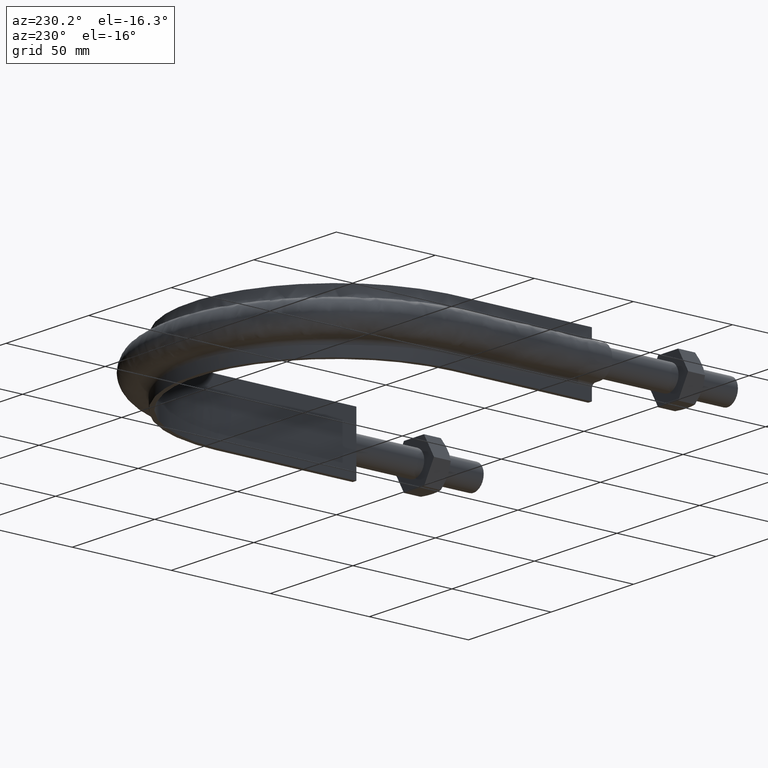
[diagram: clean part render]
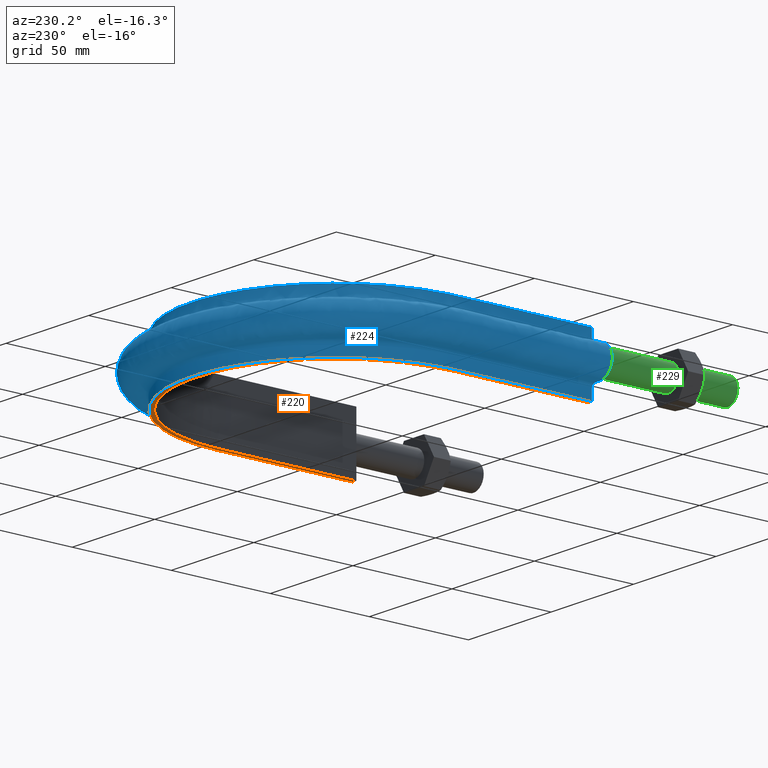
[diagram: same view with three faces highlighted in distinct colors, each labeled with its STEP entity id]
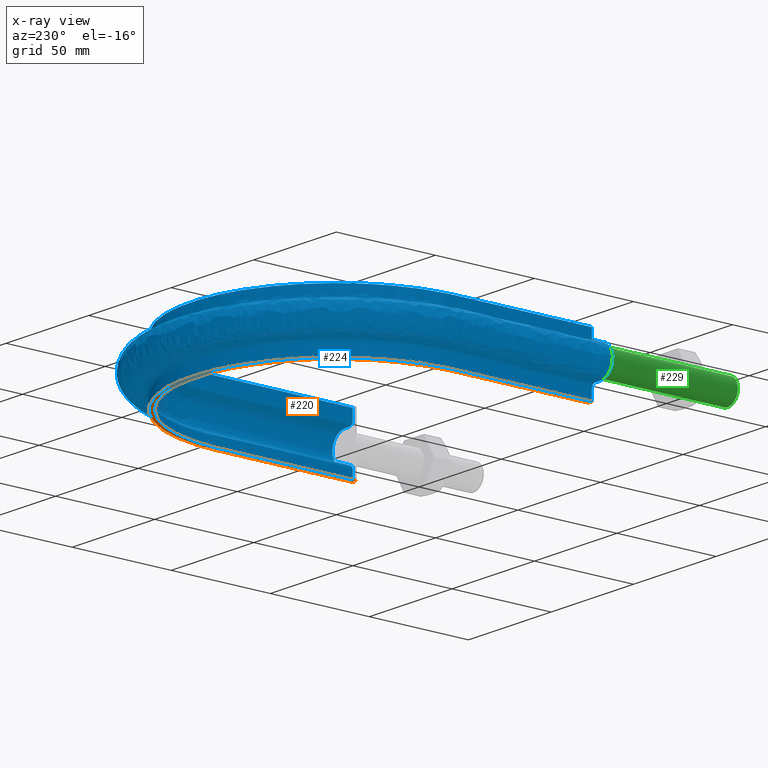
[diagram: x-ray of the same camera — body ghosted, the three highlighted faces saturated]
A machine part, auxiliary view with three faces highlighted in distinct colors.
The next image is the same camera in x-ray (body ghosted, the three faces saturated) — at least one of them is partly hidden behind the body in this view.
Their STEP definitions:

[orange] entity #220 — the highlighted planar face has unit normal (0, 0, 1).
#220 = ADVANCED_FACE( '', ( #261 ), #262, .F. );
#261 = FACE_OUTER_BOUND( '', #357, .T. );
#262 = PLANE( '', #358 );
#357 = EDGE_LOOP( '', ( #1304, #1305, #1306, #1307 ) );
#358 = AXIS2_PLACEMENT_3D( '', #1308, #1309, #1310 );
#1304 = ORIENTED_EDGE( '', *, *, #1552, .F. );
#1305 = ORIENTED_EDGE( '', *, *, #1551, .F. );
#1306 = ORIENTED_EDGE( '', *, *, #1553, .F. );
#1307 = ORIENTED_EDGE( '', *, *, #1554, .F. );
#1308 = CARTESIAN_POINT( '', ( 100.000000000000, 264.710000000000, -15.0000000000000 ) );
#1309 = DIRECTION( '', ( 0.000000000000000, 0.000000000000000, 1.00000000000000 ) );
#1310 = DIRECTION( '', ( 1.22460635382238E-016, 1.00000000000000, 0.000000000000000 ) );
#1551 = EDGE_CURVE( '', #1620, #1615, #1622, .T. );
#1552 = EDGE_CURVE( '', #1615, #1623, #1624, .T. );
#1553 = EDGE_CURVE( '', #1625, #1620, #1626, .T. );
#1554 = EDGE_CURVE( '', #1623, #1625, #1627, .T. );
#1615 = VERTEX_POINT( '', #1741 );
#1620 = VERTEX_POINT( '', #1748 );
#1622 = LINE( '', #1780, #1781 );
#1623 = VERTEX_POINT( '', #1782 );
#1624 = B_SPLINE_CURVE_WITH_KNOTS( '', 3, ( #1783, #1784, #1785, #1786, #1787, #1788, #1789, #1790, #1791, #1792, #1793, #1794, #1795, #1796, #1797, #1798 ), .UNSPECIFIED., .F., .F., ( 4, 3, 1, 1, 1, 1, 1, 1, 3, 4 ), ( -9.00000000000000, -8.00000000000000, -7.00000000000000, -6.00000000000000, -5.00000000000000, -4.00000000000000, -3.00000000000000, -2.00000000000000, -1.00000000000000, 0.000000000000000 ), .UNSPECIFIED. );
#1625 = VERTEX_POINT( '', #1799 );
#1626 = B_SPLINE_CURVE_WITH_KNOTS( '', 3, ( #1800, #1801, #1802, #1803, #1804, #1805, #1806, #1807, #1808, #1809, #1810, #1811, #1812, #1813, #1814, #1815 ), .UNSPECIFIED., .F., .F., ( 4, 3, 1, 1, 1, 1, 1, 1, 3, 4 ), ( 0.000000000000000, 1.00000000000000, 2.00000000000000, 3.00000000000000, 4.00000000000000, 5.00000000000000, 6.00000000000000, 7.00000000000000, 8.00000000000000, 9.00000000000000 ), .UNSPECIFIED. );
#1627 = LINE( '', #1816, #1817 );
#1741 = CARTESIAN_POINT( '', ( -70.2500000000000, 64.7100000000000, -15.0000000000000 ) );
#1748 = CARTESIAN_POINT( '', ( -72.4500000000000, 64.7100000000000, -15.0000000000000 ) );
#1780 = CARTESIAN_POINT( '', ( -100.000000000000, 64.7100000000000, -15.0000000000000 ) );
#1781 = VECTOR( '', #2169, 1000.00000000000 );
#1782 = CARTESIAN_POINT( '', ( 70.2500000000000, 64.7100000000000, -15.0000000000000 ) );
#1783 = CARTESIAN_POINT( '', ( -70.2500000000000, 64.7100000000000, -15.0000000000000 ) );
#1784 = CARTESIAN_POINT( '', ( -70.2500000000000, 87.7266666666667, -15.0000000000000 ) );
#1785 = CARTESIAN_POINT( '', ( -70.2500000000000, 110.743333333333, -15.0000000000000 ) );
#1786 = CARTESIAN_POINT( '', ( -70.2500000000000, 133.760000000000, -15.0000000000000 ) );
#1787 = CARTESIAN_POINT( '', ( -70.2500000000000, 144.249418134732, -15.0000000000000 ) );
#1788 = CARTESIAN_POINT( '', ( -65.4537147955432, 165.288971927909, -15.0000000000000 ) );
#1789 = CARTESIAN_POINT( '', ( -45.2953760364684, 190.556467088273, -15.0000000000000 ) );
#1790 = CARTESIAN_POINT( '', ( -16.1657325420394, 204.587129579273, -15.0000000000000 ) );
#1791 = CARTESIAN_POINT( '', ( 16.1657325420395, 204.587129579273, -15.0000000000000 ) );
#1792 = CARTESIAN_POINT( '', ( 45.2953760364684, 190.556467088273, -15.0000000000000 ) );
#1793 = CARTESIAN_POINT( '', ( 65.4537147955432, 165.288971927909, -15.0000000000000 ) );
#1794 = CARTESIAN_POINT( '', ( 70.2500000000000, 144.249418134732, -15.0000000000000 ) );
#1795 = CARTESIAN_POINT( '', ( 70.2500000000000, 133.760000000000, -15.0000000000000 ) );
#1796 = CARTESIAN_POINT( '', ( 70.2500000000000, 110.743333333333, -15.0000000000000 ) );
#1797 = CARTESIAN_POINT( '', ( 70.2500000000000, 87.7266666666667, -15.0000000000000 ) );
#1798 = CARTESIAN_POINT( '', ( 70.2500000000000, 64.7100000000000, -15.0000000000000 ) );
#1799 = CARTESIAN_POINT( '', ( 72.4500000000000, 64.7100000000000, -15.0000000000000 ) );
#1800 = CARTESIAN_POINT( '', ( 72.4500000000000, 64.7100000000000, -15.0000000000000 ) );
#1801 = CARTESIAN_POINT( '', ( 72.4500000000000, 87.7266666666666, -15.0000000000000 ) );
#1802 = CARTESIAN_POINT( '', ( 72.4500000000000, 110.743333333333, -15.0000000000000 ) );
#1803 = CARTESIAN_POINT( '', ( 72.4500000000000, 133.760000000000, -15.0000000000000 ) );
#1804 = CARTESIAN_POINT( '', ( 72.4500000000000, 144.584175230504, -15.0000000000000 ) );
#1805 = CARTESIAN_POINT( '', ( 67.5035108460798, 166.273453800089, -15.0000000000000 ) );
#1806 = CARTESIAN_POINT( '', ( 46.7138789159023, 192.335910248336, -15.0000000000000 ) );
#1807 = CARTESIAN_POINT( '', ( 16.6719903583027, 206.805050635421, -15.0000000000000 ) );
#1808 = CARTESIAN_POINT( '', ( -16.6719903583025, 206.805050635421, -15.0000000000000 ) );
#1809 = CARTESIAN_POINT( '', ( -46.7138789159022, 192.335910248336, -15.0000000000000 ) );
#1810 = CARTESIAN_POINT( '', ( -67.5035108460798, 166.273453800089, -15.0000000000000 ) );
#1811 = CARTESIAN_POINT( '', ( -72.4500000000000, 144.584175230504, -15.0000000000000 ) );
#1812 = CARTESIAN_POINT( '', ( -72.4500000000000, 133.760000000000, -15.0000000000000 ) );
#1813 = CARTESIAN_POINT( '', ( -72.4500000000000, 110.743333333333, -15.0000000000000 ) );
#1814 = CARTESIAN_POINT( '', ( -72.4500000000000, 87.7266666666667, -15.0000000000000 ) );
#1815 = CARTESIAN_POINT( '', ( -72.4500000000000, 64.7100000000000, -15.0000000000000 ) );
#1816 = CARTESIAN_POINT( '', ( -100.000000000000, 64.7100000000000, -15.0000000000000 ) );
#1817 = VECTOR( '', #2170, 1000.00000000000 );
#2169 = DIRECTION( '', ( 1.00000000000000, -1.22460635382238E-016, 0.000000000000000 ) );
#2170 = DIRECTION( '', ( 1.00000000000000, -1.22460635382238E-016, 0.000000000000000 ) );

[blue] entity #224 — the highlighted face is a freeform B-spline surface patch.
#224 = ADVANCED_FACE( '', ( #270 ), #271, .F. );
#270 = FACE_OUTER_BOUND( '', #367, .T. );
#271 = B_SPLINE_SURFACE_WITH_KNOTS( '', 3, 3, ( ( #368, #369, #370, #371, #372, #373, #374, #375, #376, #377, #378, #379, #380, #381, #382, #383 ), ( #384, #385, #386, #387, #388, #389, #390, #391, #392, #393, #394, #395, #396, #397, #398, #399 ), ( #400, #401, #402, #403, #404, #405, #406, #407, #408, #409, #410, #411, #412, #413, #414, #415 ), ( #416, #417, #418, #419, #420, #421, #422, #423, #424, #425, #426, #427, #428, #429, #430, #431 ), ( #432, #433, #434, #435, #436, #437, #438, #439, #440, #441, #442, #443, #444, #445, #446, #447 ), ( #448, #449, #450, #451, #452, #453, #454, #455, #456, #457, #458, #459, #460, #461, #462, #463 ), ( #464, #465, #466, #467, #468, #469, #470, #471, #472, #473, #474, #475, #476, #477, #478, #479 ), ( #480, #481, #482, #483, #484, #485, #486, #487, #488, #489, #490, #491, #492, #493, #494, #495 ), ( #496, #497, #498, #499, #500, #501, #502, #503, #504, #505, #506, #507, #508, #509, #510, #511 ), ( #512, #513, #514, #515, #516, #517, #518, #519, #520, #521, #522, #523, #524, #525, #526, #527 ), ( #528, #529, #530, #531, #532, #533, #534, #535, #536, #537, #538, #539, #540, #541, #542, #543 ), ( #544, #545, #546, #547, #548, #549, #550, #551, #552, #553, #554, #555, #556, #557, #558, #559 ), ( #560, #561, #562, #563, #564, #565, #566, #567, #568, #569, #570, #571, #572, #573, #574, #575 ), ( #576, #577, #578, #579, #580, #581, #582, #583, #584, #585, #586, #587, #588, #589, #590, #591 ), ( #592, #593, #594, #595, #596, #597, #598, #599, #600, #601, #602, #603, #604, #605, #606, #607 ), ( #608, #609, #610, #611, #612, #613, #614, #615, #616, #617, #618, #619, #620, #621, #622, #623 ), ( #624, #625, #626, #627, #628, #629, #630, #631, #632, #633, #634, #635, #636, #637, #638, #639 ), ( #640, #641, #642, #643, #644, #645, #646, #647, #648, #649, #650, #651, #652, #653, #654, #655 ), ( #656, #657, #658, #659, #660, #661, #662, #663, #664, #665, #666, #667, #668, #669, #670, #671 ), ( #672, #673, #674, #675, #676, #677, #678, #679, #680, #681, #682, #683, #684, #685, #686, #687 ), ( #688, #689, #690, #691, #692, #693, #694, #695, #696, #697, #698, #699, #700, #701, #702, #703 ), ( #704, #705, #706, #707, #708, #709, #710, #711, #712, #713, #714, #715, #716, #717, #718, #719 ), ( #720, #721, #722, #723, #724, #725, #726, #727, #728, #729, #730, #731, #732, #733, #734, #735 ), ( #736, #737, #738, #739, #740, #741, #742, #743, #744, #745, #746, #747, #748, #749, #750, #751 ), ( #752, #753, #754, #755, #756, #757, #758, #759, #760, #761, #762, #763, #764, #765, #766, #767 ), ( #768, #769, #770, #771, #772, #773, #774, #775, #776, #777, #778, #779, #780, #781, #782, #783 ), ( #784, #785, #786, #787, #788, #789, #790, #791, #792, #793, #794, #795, #796, #797, #798, #799 ), ( #800, #801, #802, #803, #804, #805, #806, #807, #808, #809, #810, #811, #812, #813, #814, #815 ), ( #816, #817, #818, #819, #820, #821, #822, #823, #824, #825, #826, #827, #828, #829, #830, #831 ), ( #832, #833, #834, #835, #836, #837, #838, #839, #840, #841, #842, #843, #844, #845, #846, #847 ), ( #848, #849, #850, #851, #852, #853, #854, #855, #856, #857, #858, #859, #860, #861, #862, #863 ) ), .UNSPECIFIED., .F., .F., .F., ( 4, 3, 1, 1, 1, 3, 3, 1, 1, 1, 3, 3, 1, 1, 1, 3, 4 ), ( 4, 3, 1, 1, 1, 1, 1, 1, 3, 4 ), ( 0.105263157894737, 0.157894736842105, 0.210526315789474, 0.263157894736842, 0.315789473684211, 0.368421052631579, 0.421052631578947, 0.473684210526316, 0.526315789473684, 0.578947368421053, 0.631578947368421, 0.684210526315789, 0.736842105263158, 0.789473684210526, 0.842105263157895, 0.894736842105263, 0.947368421052632 ), ( 0.000000000000000, 1.00000000000000, 2.00000000000000, 3.00000000000000, 4.00000000000000, 5.00000000000000, 6.00000000000000, 7.00000000000000, 8.00000000000000, 9.00000000000000 ), .UNSPECIFIED. );
#367 = EDGE_LOOP( '', ( #1347, #1348, #1349, #1350 ) );
#368 = CARTESIAN_POINT( '', ( 72.4500000000000, 64.7100000000000, -15.0000000000000 ) );
#369 = CARTESIAN_POINT( '', ( 72.4500000000000, 87.7266666666666, -15.0000000000000 ) );
#370 = CARTESIAN_POINT( '', ( 72.4500000000000, 110.743333333333, -15.0000000000000 ) );
#371 = CARTESIAN_POINT( '', ( 72.4500000000000, 133.760000000000, -15.0000000000000 ) );
#372 = CARTESIAN_POINT( '', ( 72.4500000000000, 144.584175230504, -15.0000000000000 ) );
#373 = CARTESIAN_POINT( '', ( 67.5035108460798, 166.273453800089, -15.0000000000000 ) );
#374 = CARTESIAN_POINT( '', ( 46.7138789159023, 192.335910248336, -15.0000000000000 ) );
#375 = CARTESIAN_POINT( '', ( 16.6719903583027, 206.805050635421, -15.0000000000000 ) );
#376 = CARTESIAN_POINT( '', ( -16.6719903583025, 206.805050635421, -15.0000000000000 ) );
#377 = CARTESIAN_POINT( '', ( -46.7138789159022, 192.335910248336, -15.0000000000000 ) );
#378 = CARTESIAN_POINT( '', ( -67.5035108460798, 166.273453800089, -15.0000000000000 ) );
#379 = CARTESIAN_POINT( '', ( -72.4500000000000, 144.584175230504, -15.0000000000000 ) );
#380 = CARTESIAN_POINT( '', ( -72.4500000000000, 133.760000000000, -15.0000000000000 ) );
#381 = CARTESIAN_POINT( '', ( -72.4500000000000, 110.743333333333, -15.0000000000000 ) );
#382 = CARTESIAN_POINT( '', ( -72.4500000000000, 87.7266666666667, -15.0000000000000 ) );
#383 = CARTESIAN_POINT( '', ( -72.4500000000000, 64.7100000000000, -15.0000000000000 ) );
#384 = CARTESIAN_POINT( '', ( 72.4500000000000, 64.7100000000000, -13.2666666666667 ) );
#385 = CARTESIAN_POINT( '', ( 72.4500000000000, 87.7266666666666, -13.2666666666667 ) );
#386 = CARTESIAN_POINT( '', ( 72.4500000000000, 110.743333333333, -13.2666666666667 ) );
#387 = CARTESIAN_POINT( '', ( 72.4500000000000, 133.760000000000, -13.2666666666667 ) );
#388 = CARTESIAN_POINT( '', ( 72.4500000000000, 144.584175230504, -13.2666666666667 ) );
#389 = CARTESIAN_POINT( '', ( 67.5035108460798, 166.273453800089, -13.2666666666667 ) );
#390 = CARTESIAN_POINT( '', ( 46.7138789159023, 192.335910248336, -13.2666666666667 ) );
#391 = CARTESIAN_POINT( '', ( 16.6719903583027, 206.805050635421, -13.2666666666667 ) );
#392 = CARTESIAN_POINT( '', ( -16.6719903583025, 206.805050635421, -13.2666666666667 ) );
#393 = CARTESIAN_POINT( '', ( -46.7138789159022, 192.335910248336, -13.2666666666667 ) );
#394 = CARTESIAN_POINT( '', ( -67.5035108460798, 166.273453800089, -13.2666666666667 ) );
#395 = CARTESIAN_POINT( '', ( -72.4500000000000, 144.584175230504, -13.2666666666667 ) );
#396 = CARTESIAN_POINT( '', ( -72.4500000000000, 133.760000000000, -13.2666666666667 ) );
#397 = CARTESIAN_POINT( '', ( -72.4500000000000, 110.743333333333, -13.2666666666667 ) );
#398 = CARTESIAN_POINT( '', ( -72.4500000000000, 87.7266666666667, -13.2666666666667 ) );
#399 = CARTESIAN_POINT( '', ( -72.4500000000000, 64.7100000000000, -13.2666666666667 ) );
#400 = CARTESIAN_POINT( '', ( 72.4500000000000, 64.7100000000000, -11.5333333333333 ) );
#401 = CARTESIAN_POINT( '', ( 72.4500000000000, 87.7266666666667, -11.5333333333333 ) );
#402 = CARTESIAN_POINT( '', ( 72.4500000000000, 110.743333333333, -11.5333333333333 ) );
#403 = CARTESIAN_POINT( '', ( 72.4500000000000, 133.760000000000, -11.5333333333333 ) );
#404 = CARTESIAN_POINT( '', ( 72.4500000000000, 144.584175230504, -11.5333333333333 ) );
#405 = CARTESIAN_POINT( '', ( 67.5035108460798, 166.273453800089, -11.5333333333333 ) );
#406 = CARTESIAN_POINT( '', ( 46.7138789159023, 192.335910248336, -11.5333333333333 ) );
#407 = CARTESIAN_POINT( '', ( 16.6719903583027, 206.805050635421, -11.5333333333333 ) );
#408 = CARTESIAN_POINT( '', ( -16.6719903583025, 206.805050635421, -11.5333333333333 ) );
#409 = CARTESIAN_POINT( '', ( -46.7138789159022, 192.335910248336, -11.5333333333333 ) );
#410 = CARTESIAN_POINT( '', ( -67.5035108460798, 166.273453800089, -11.5333333333333 ) );
#411 = CARTESIAN_POINT( '', ( -72.4500000000000, 144.584175230504, -11.5333333333333 ) );
#412 = CARTESIAN_POINT( '', ( -72.4500000000000, 133.760000000000, -11.5333333333333 ) );
#413 = CARTESIAN_POINT( '', ( -72.4500000000000, 110.743333333333, -11.5333333333333 ) );
#414 = CARTESIAN_POINT( '', ( -72.4500000000000, 87.7266666666667, -11.5333333333333 ) );
#415 = CARTESIAN_POINT( '', ( -72.4500000000000, 64.7100000000000, -11.5333333333333 ) );
#416 = CARTESIAN_POINT( '', ( 72.4500000000000, 64.7100000000000, -9.79999999999999 ) );
#417 = CARTESIAN_POINT( '', ( 72.4500000000000, 87.7266666666667, -9.79999999999999 ) );
#418 = CARTESIAN_POINT( '', ( 72.4500000000000, 110.743333333333, -9.79999999999999 ) );
#419 = CARTESIAN_POINT( '', ( 72.4500000000000, 133.760000000000, -9.79999999999999 ) );
#420 = CARTESIAN_POINT( '', ( 72.4500000000000, 144.584175230504, -9.79999999999999 ) );
#421 = CARTESIAN_POINT( '', ( 67.5035108460798, 166.273453800089, -9.80000000000000 ) );
#422 = CARTESIAN_POINT( '', ( 46.7138789159023, 192.335910248336, -9.79999999999998 ) );
#423 = CARTESIAN_POINT( '', ( 16.6719903583027, 206.805050635421, -9.80000000000000 ) );
#424 = CARTESIAN_POINT( '', ( -16.6719903583025, 206.805050635421, -9.79999999999999 ) );
#425 = CARTESIAN_POINT( '', ( -46.7138789159022, 192.335910248336, -9.79999999999999 ) );
#426 = CARTESIAN_POINT( '', ( -67.5035108460798, 166.273453800089, -9.79999999999999 ) );
#427 = CARTESIAN_POINT( '', ( -72.4500000000000, 144.584175230504, -9.79999999999999 ) );
#428 = CARTESIAN_POINT( '', ( -72.4500000000000, 133.760000000000, -9.79999999999999 ) );
#429 = CARTESIAN_POINT( '', ( -72.4500000000000, 110.743333333333, -9.79999999999999 ) );
#430 = CARTESIAN_POINT( '', ( -72.4500000000000, 87.7266666666667, -9.79999999999999 ) );
#431 = CARTESIAN_POINT( '', ( -72.4500000000000, 64.7100000000000, -9.79999999999999 ) );
#432 = CARTESIAN_POINT( '', ( 72.4500000000000, 64.7100000000000, -9.53823584172332 ) );
#433 = CARTESIAN_POINT( '', ( 72.4500000000000, 87.7266666666667, -9.53823584172332 ) );
#434 = CARTESIAN_POINT( '', ( 72.4500000000000, 110.743333333333, -9.53823584172332 ) );
#435 = CARTESIAN_POINT( '', ( 72.4500000000000, 133.760000000000, -9.53823584172332 ) );
#436 = CARTESIAN_POINT( '', ( 72.4500000000000, 144.584175230504, -9.53823584172332 ) );
#437 = CARTESIAN_POINT( '', ( 67.5035108460798, 166.273453800089, -9.53823584172334 ) );
#438 = CARTESIAN_POINT( '', ( 46.7138789159023, 192.335910248336, -9.53823584172331 ) );
#439 = CARTESIAN_POINT( '', ( 16.6719903583027, 206.805050635421, -9.53823584172333 ) );
#440 = CARTESIAN_POINT( '', ( -16.6719903583025, 206.805050635421, -9.53823584172332 ) );
#441 = CARTESIAN_POINT( '', ( -46.7138789159022, 192.335910248336, -9.53823584172333 ) );
#442 = CARTESIAN_POINT( '', ( -67.5035108460798, 166.273453800089, -9.53823584172333 ) );
#443 = CARTESIAN_POINT( '', ( -72.4500000000000, 144.584175230504, -9.53823584172332 ) );
#444 = CARTESIAN_POINT( '', ( -72.4500000000000, 133.760000000000, -9.53823584172332 ) );
#445 = CARTESIAN_POINT( '', ( -72.4500000000000, 110.743333333333, -9.53823584172332 ) );
#446 = CARTESIAN_POINT( '', ( -72.4500000000000, 87.7266666666667, -9.53823584172332 ) );
#447 = CARTESIAN_POINT( '', ( -72.4500000000000, 64.7100000000000, -9.53823584172332 ) );
#448 = CARTESIAN_POINT( '', ( 72.5541362568359, 64.7100000000000, -9.01470752517000 ) );
#449 = CARTESIAN_POINT( '', ( 72.5541362568359, 87.7266666666667, -9.01470752517000 ) );
#450 = CARTESIAN_POINT( '', ( 72.5541362568359, 110.743333333333, -9.01470752517000 ) );
#451 = CARTESIAN_POINT( '', ( 72.5541362568359, 133.760000000000, -9.01470752517000 ) );
#452 = CARTESIAN_POINT( '', ( 72.5541362568359, 144.600020844551, -9.01470752517000 ) );
#453 = CARTESIAN_POINT( '', ( 67.6005372497070, 166.320053916949, -9.01470752517001 ) );
#454 = CARTESIAN_POINT( '', ( 46.7810232705274, 192.420139589218, -9.01470752516999 ) );
#455 = CARTESIAN_POINT( '', ( 16.6959539010206, 206.910035179395, -9.01470752517000 ) );
#456 = CARTESIAN_POINT( '', ( -16.6959539010205, 206.910035179395, -9.01470752517000 ) );
#457 = CARTESIAN_POINT( '', ( -46.7810232705273, 192.420139589218, -9.01470752517000 ) );
#458 = CARTESIAN_POINT( '', ( -67.6005372497070, 166.320053916949, -9.01470752517000 ) );
#459 = CARTESIAN_POINT( '', ( -72.5541362568359, 144.600020844551, -9.01470752517000 ) );
#460 = CARTESIAN_POINT( '', ( -72.5541362568359, 133.760000000000, -9.01470752517000 ) );
#461 = CARTESIAN_POINT( '', ( -72.5541362568359, 110.743333333333, -9.01470752517000 ) );
#462 = CARTESIAN_POINT( '', ( -72.5541362568359, 87.7266666666667, -9.01470752517000 ) );
#463 = CARTESIAN_POINT( '', ( -72.5541362568359, 64.7100000000000, -9.01470752517000 ) );
#464 = CARTESIAN_POINT( '', ( 72.9989687109389, 64.7100000000000, -8.34896871093886 ) );
#465 = CARTESIAN_POINT( '', ( 72.9989687109389, 87.7266666666667, -8.34896871093886 ) );
#466 = CARTESIAN_POINT( '', ( 72.9989687109389, 110.743333333333, -8.34896871093886 ) );
#467 = CARTESIAN_POINT( '', ( 72.9989687109389, 133.760000000000, -8.34896871093886 ) );
#468 = CARTESIAN_POINT( '', ( 72.9989687109389, 144.667707581115, -8.34896871093886 ) );
#469 = CARTESIAN_POINT( '', ( 68.0149989804211, 166.519112774777, -8.34896871093888 ) );
#470 = CARTESIAN_POINT( '', ( 47.0678396873504, 192.779936892776, -8.34896871093885 ) );
#471 = CARTESIAN_POINT( '', ( 16.7983174950284, 207.358491209583, -8.34896871093887 ) );
#472 = CARTESIAN_POINT( '', ( -16.7983174950283, 207.358491209583, -8.34896871093886 ) );
#473 = CARTESIAN_POINT( '', ( -47.0678396873504, 192.779936892776, -8.34896871093886 ) );
#474 = CARTESIAN_POINT( '', ( -68.0149989804210, 166.519112774777, -8.34896871093886 ) );
#475 = CARTESIAN_POINT( '', ( -72.9989687109389, 144.667707581115, -8.34896871093886 ) );
#476 = CARTESIAN_POINT( '', ( -72.9989687109388, 133.760000000000, -8.34896871093886 ) );
#477 = CARTESIAN_POINT( '', ( -72.9989687109388, 110.743333333333, -8.34896871093886 ) );
#478 = CARTESIAN_POINT( '', ( -72.9989687109388, 87.7266666666667, -8.34896871093886 ) );
#479 = CARTESIAN_POINT( '', ( -72.9989687109389, 64.7100000000000, -8.34896871093886 ) );
#480 = CARTESIAN_POINT( '', ( 73.6647075251700, 64.7100000000000, -7.90413625683590 ) );
#481 = CARTESIAN_POINT( '', ( 73.6647075251700, 87.7266666666667, -7.90413625683590 ) );
#482 = CARTESIAN_POINT( '', ( 73.6647075251700, 110.743333333333, -7.90413625683590 ) );
#483 = CARTESIAN_POINT( '', ( 73.6647075251700, 133.760000000000, -7.90413625683590 ) );
#484 = CARTESIAN_POINT( '', ( 73.6647075251700, 144.769007941112, -7.90413625683590 ) );
#485 = CARTESIAN_POINT( '', ( 68.6352847950119, 166.817025408512, -7.90413625683591 ) );
#486 = CARTESIAN_POINT( '', ( 47.4970907895949, 193.318411610672, -7.90413625683589 ) );
#487 = CARTESIAN_POINT( '', ( 16.9515154397077, 208.029653088664, -7.90413625683590 ) );
#488 = CARTESIAN_POINT( '', ( -16.9515154397075, 208.029653088664, -7.90413625683589 ) );
#489 = CARTESIAN_POINT( '', ( -47.4970907895948, 193.318411610672, -7.90413625683590 ) );
#490 = CARTESIAN_POINT( '', ( -68.6352847950119, 166.817025408512, -7.90413625683590 ) );
#491 = CARTESIAN_POINT( '', ( -73.6647075251700, 144.769007941112, -7.90413625683590 ) );
#492 = CARTESIAN_POINT( '', ( -73.6647075251700, 133.760000000000, -7.90413625683590 ) );
#493 = CARTESIAN_POINT( '', ( -73.6647075251700, 110.743333333333, -7.90413625683590 ) );
#494 = CARTESIAN_POINT( '', ( -73.6647075251700, 87.7266666666667, -7.90413625683590 ) );
#495 = CARTESIAN_POINT( '', ( -73.6647075251700, 64.7100000000000, -7.90413625683590 ) );
#496 = CARTESIAN_POINT( '', ( 74.1882358417234, 64.7100000000000, -7.79999999999999 ) );
#497 = CARTESIAN_POINT( '', ( 74.1882358417233, 87.7266666666667, -7.79999999999999 ) );
#498 = CARTESIAN_POINT( '', ( 74.1882358417233, 110.743333333333, -7.79999999999999 ) );
#499 = CARTESIAN_POINT( '', ( 74.1882358417234, 133.760000000000, -7.79999999999999 ) );
#500 = CARTESIAN_POINT( '', ( 74.1882358417234, 144.848669222387, -7.79999999999999 ) );
#501 = CARTESIAN_POINT( '', ( 69.1230694657460, 167.051300016339, -7.80000000000000 ) );
#502 = CARTESIAN_POINT( '', ( 47.8346482552749, 193.741861102486, -7.79999999999998 ) );
#503 = CARTESIAN_POINT( '', ( 17.0719883043850, 208.557446032652, -7.80000000000000 ) );
#504 = CARTESIAN_POINT( '', ( -17.0719883043849, 208.557446032652, -7.79999999999998 ) );
#505 = CARTESIAN_POINT( '', ( -47.8346482552749, 193.741861102486, -7.79999999999999 ) );
#506 = CARTESIAN_POINT( '', ( -69.1230694657460, 167.051300016339, -7.79999999999999 ) );
#507 = CARTESIAN_POINT( '', ( -74.1882358417233, 144.848669222387, -7.79999999999999 ) );
#508 = CARTESIAN_POINT( '', ( -74.1882358417233, 133.760000000000, -7.79999999999999 ) );
#509 = CARTESIAN_POINT( '', ( -74.1882358417233, 110.743333333333, -7.79999999999999 ) );
#510 = CARTESIAN_POINT( '', ( -74.1882358417233, 87.7266666666667, -7.79999999999999 ) );
#511 = CARTESIAN_POINT( '', ( -74.1882358417233, 64.7100000000000, -7.79999999999999 ) );
#512 = CARTESIAN_POINT( '', ( 74.4500000000000, 64.7100000000000, -7.79999999999999 ) );
#513 = CARTESIAN_POINT( '', ( 74.4500000000000, 87.7266666666667, -7.79999999999999 ) );
#514 = CARTESIAN_POINT( '', ( 74.4500000000000, 110.743333333333, -7.79999999999999 ) );
#515 = CARTESIAN_POINT( '', ( 74.4500000000000, 133.760000000000, -7.79999999999999 ) );
#516 = CARTESIAN_POINT( '', ( 74.4500000000000, 144.888499863024, -7.79999999999999 ) );
#517 = CARTESIAN_POINT( '', ( 69.3669618011131, 167.168437320253, -7.80000000000000 ) );
#518 = CARTESIAN_POINT( '', ( 48.0034269881149, 193.953585848393, -7.79999999999998 ) );
#519 = CARTESIAN_POINT( '', ( 17.1322247367237, 208.821342504646, -7.80000000000000 ) );
#520 = CARTESIAN_POINT( '', ( -17.1322247367236, 208.821342504646, -7.79999999999998 ) );
#521 = CARTESIAN_POINT( '', ( -48.0034269881148, 193.953585848393, -7.79999999999999 ) );
#522 = CARTESIAN_POINT( '', ( -69.3669618011131, 167.168437320253, -7.79999999999999 ) );
#523 = CARTESIAN_POINT( '', ( -74.4500000000000, 144.888499863024, -7.79999999999999 ) );
#524 = CARTESIAN_POINT( '', ( -74.4500000000000, 133.760000000000, -7.79999999999999 ) );
#525 = CARTESIAN_POINT( '', ( -74.4500000000000, 110.743333333333, -7.79999999999999 ) );
#526 = CARTESIAN_POINT( '', ( -74.4500000000000, 87.7266666666667, -7.79999999999999 ) );
#527 = CARTESIAN_POINT( '', ( -74.4500000000000, 64.7100000000000, -7.79999999999999 ) );
#528 = CARTESIAN_POINT( '', ( 75.3000000000000, 64.7100000000000, -7.79999999999999 ) );
#529 = CARTESIAN_POINT( '', ( 75.3000000000000, 87.7266666666666, -7.79999999999999 ) );
#530 = CARTESIAN_POINT( '', ( 75.3000000000000, 110.743333333333, -7.79999999999999 ) );
#531 = CARTESIAN_POINT( '', ( 75.3000000000000, 133.760000000000, -7.79999999999999 ) );
#532 = CARTESIAN_POINT( '', ( 75.3000000000000, 145.017837831845, -7.79999999999999 ) );
#533 = CARTESIAN_POINT( '', ( 70.1589284570022, 167.548805316322, -7.80000000000000 ) );
#534 = CARTESIAN_POINT( '', ( 48.5514849188053, 194.641097978417, -7.79999999999998 ) );
#535 = CARTESIAN_POINT( '', ( 17.3278243475527, 209.678266549066, -7.80000000000000 ) );
#536 = CARTESIAN_POINT( '', ( -17.3278243475525, 209.678266549066, -7.79999999999999 ) );
#537 = CARTESIAN_POINT( '', ( -48.5514849188052, 194.641097978417, -7.79999999999999 ) );
#538 = CARTESIAN_POINT( '', ( -70.1589284570022, 167.548805316322, -7.79999999999999 ) );
#539 = CARTESIAN_POINT( '', ( -75.3000000000000, 145.017837831845, -7.79999999999999 ) );
#540 = CARTESIAN_POINT( '', ( -75.3000000000000, 133.760000000000, -7.79999999999999 ) );
#541 = CARTESIAN_POINT( '', ( -75.3000000000000, 110.743333333333, -7.79999999999999 ) );
#542 = CARTESIAN_POINT( '', ( -75.3000000000000, 87.7266666666667, -7.79999999999999 ) );
#543 = CARTESIAN_POINT( '', ( -75.3000000000000, 64.7100000000000, -7.79999999999999 ) );
#544 = CARTESIAN_POINT( '', ( 76.1500000000000, 64.7100000000000, -7.79999999999999 ) );
#545 = CARTESIAN_POINT( '', ( 76.1500000000000, 87.7266666666666, -7.79999999999999 ) );
#546 = CARTESIAN_POINT( '', ( 76.1500000000000, 110.743333333333, -7.79999999999999 ) );
#547 = CARTESIAN_POINT( '', ( 76.1500000000000, 133.760000000000, -7.79999999999999 ) );
#548 = CARTESIAN_POINT( '', ( 76.1500000000000, 145.147175800666, -7.79999999999999 ) );
#549 = CARTESIAN_POINT( '', ( 70.9508951128914, 167.929173312392, -7.80000000000000 ) );
#550 = CARTESIAN_POINT( '', ( 49.0995428494956, 195.328610108441, -7.79999999999998 ) );
#551 = CARTESIAN_POINT( '', ( 17.5234239583816, 210.535190593487, -7.80000000000000 ) );
#552 = CARTESIAN_POINT( '', ( -17.5234239583815, 210.535190593487, -7.79999999999999 ) );
#553 = CARTESIAN_POINT( '', ( -49.0995428494956, 195.328610108441, -7.79999999999999 ) );
#554 = CARTESIAN_POINT( '', ( -70.9508951128914, 167.929173312392, -7.79999999999999 ) );
#555 = CARTESIAN_POINT( '', ( -76.1500000000000, 145.147175800666, -7.79999999999999 ) );
#556 = CARTESIAN_POINT( '', ( -76.1500000000000, 133.760000000000, -7.79999999999999 ) );
#557 = CARTESIAN_POINT( '', ( -76.1500000000000, 110.743333333333, -7.79999999999999 ) );
#558 = CARTESIAN_POINT( '', ( -76.1500000000000, 87.7266666666667, -7.79999999999999 ) );
#559 = CARTESIAN_POINT( '', ( -76.1500000000000, 64.7100000000000, -7.79999999999999 ) );
#560 = CARTESIAN_POINT( '', ( 77.0000000000000, 64.7100000000000, -7.79999999999999 ) );
#561 = CARTESIAN_POINT( '', ( 77.0000000000000, 87.7266666666666, -7.79999999999999 ) );
#562 = CARTESIAN_POINT( '', ( 77.0000000000000, 110.743333333333, -7.79999999999999 ) );
#563 = CARTESIAN_POINT( '', ( 77.0000000000000, 133.760000000000, -7.79999999999999 ) );
#564 = CARTESIAN_POINT( '', ( 77.0000000000001, 145.276513769487, -7.79999999999999 ) );
#565 = CARTESIAN_POINT( '', ( 71.7428617687805, 168.309541308462, -7.80000000000000 ) );
#566 = CARTESIAN_POINT( '', ( 49.6476007801860, 196.016122238465, -7.79999999999998 ) );
#567 = CARTESIAN_POINT( '', ( 17.7190235692105, 211.392114637907, -7.80000000000000 ) );
#568 = CARTESIAN_POINT( '', ( -17.7190235692104, 211.392114637907, -7.79999999999999 ) );
#569 = CARTESIAN_POINT( '', ( -49.6476007801860, 196.016122238465, -7.79999999999999 ) );
#570 = CARTESIAN_POINT( '', ( -71.7428617687805, 168.309541308462, -7.79999999999999 ) );
#571 = CARTESIAN_POINT( '', ( -77.0000000000000, 145.276513769487, -7.79999999999999 ) );
#572 = CARTESIAN_POINT( '', ( -77.0000000000000, 133.760000000000, -7.79999999999999 ) );
#573 = CARTESIAN_POINT( '', ( -77.0000000000000, 110.743333333333, -7.79999999999999 ) );
#574 = CARTESIAN_POINT( '', ( -77.0000000000000, 87.7266666666667, -7.79999999999999 ) );
#575 = CARTESIAN_POINT( '', ( -77.0000000000000, 64.7100000000000, -7.79999999999999 ) );
#576 = CARTESIAN_POINT( '', ( 79.0373902247172, 64.7100000000000, -7.79999999999997 ) );
#577 = CARTESIAN_POINT( '', ( 79.0373902247172, 87.7266666666667, -7.79999999999997 ) );
#578 = CARTESIAN_POINT( '', ( 79.0373902247172, 110.743333333333, -7.79999999999997 ) );
#579 = CARTESIAN_POINT( '', ( 79.0373902247172, 133.760000000000, -7.79999999999997 ) );
#580 = CARTESIAN_POINT( '', ( 79.0373902247172, 145.586527785206, -7.79999999999997 ) );
#581 = CARTESIAN_POINT( '', ( 73.6411501487929, 169.221256646094, -7.79999999999998 ) );
#582 = CARTESIAN_POINT( '', ( 50.9612570985005, 197.664040465625, -7.79999999999996 ) );
#583 = CARTESIAN_POINT( '', ( 18.1878620810475, 213.446101310175, -7.79999999999998 ) );
#584 = CARTESIAN_POINT( '', ( -18.1878620810474, 213.446101310175, -7.79999999999997 ) );
#585 = CARTESIAN_POINT( '', ( -50.9612570985004, 197.664040465625, -7.79999999999998 ) );
#586 = CARTESIAN_POINT( '', ( -73.6411501487928, 169.221256646094, -7.79999999999997 ) );
#587 = CARTESIAN_POINT( '', ( -79.0373902247172, 145.586527785206, -7.79999999999997 ) );
#588 = CARTESIAN_POINT( '', ( -79.0373902247172, 133.760000000000, -7.79999999999997 ) );
#589 = CARTESIAN_POINT( '', ( -79.0373902247172, 110.743333333333, -7.79999999999997 ) );
#590 = CARTESIAN_POINT( '', ( -79.0373902247172, 87.7266666666667, -7.79999999999997 ) );
#591 = CARTESIAN_POINT( '', ( -79.0373902247172, 64.7100000000000, -7.79999999999997 ) );
#592 = CARTESIAN_POINT( '', ( 83.1121706741516, 64.7100000000000, -6.11217067415152 ) );
#593 = CARTESIAN_POINT( '', ( 83.1121706741516, 87.7266666666667, -6.11217067415152 ) );
#594 = CARTESIAN_POINT( '', ( 83.1121706741516, 110.743333333333, -6.11217067415152 ) );
#595 = CARTESIAN_POINT( '', ( 83.1121706741516, 133.760000000000, -6.11217067415152 ) );
#596 = CARTESIAN_POINT( '', ( 83.1121706741516, 146.206555816643, -6.11217067415152 ) );
#597 = CARTESIAN_POINT( '', ( 77.4377269088175, 171.044687321359, -6.11217067415152 ) );
#598 = CARTESIAN_POINT( '', ( 53.5885697351293, 200.959876919944, -6.11217067415151 ) );
#599 = CARTESIAN_POINT( '', ( 19.1255391047213, 217.554074654711, -6.11217067415152 ) );
#600 = CARTESIAN_POINT( '', ( -19.1255391047212, 217.554074654711, -6.11217067415151 ) );
#601 = CARTESIAN_POINT( '', ( -53.5885697351293, 200.959876919944, -6.11217067415152 ) );
#602 = CARTESIAN_POINT( '', ( -77.4377269088175, 171.044687321359, -6.11217067415152 ) );
#603 = CARTESIAN_POINT( '', ( -83.1121706741515, 146.206555816643, -6.11217067415152 ) );
#604 = CARTESIAN_POINT( '', ( -83.1121706741515, 133.760000000000, -6.11217067415152 ) );
#605 = CARTESIAN_POINT( '', ( -83.1121706741515, 110.743333333333, -6.11217067415152 ) );
#606 = CARTESIAN_POINT( '', ( -83.1121706741515, 87.7266666666667, -6.11217067415152 ) );
#607 = CARTESIAN_POINT( '', ( -83.1121706741515, 64.7100000000000, -6.11217067415152 ) );
#608 = CARTESIAN_POINT( '', ( 85.6439146629242, 64.7100000000000, -2.58929722408949E-015 ) );
#609 = CARTESIAN_POINT( '', ( 85.6439146629242, 87.7266666666667, -2.58929722408949E-015 ) );
#610 = CARTESIAN_POINT( '', ( 85.6439146629242, 110.743333333333, -2.58929722408949E-015 ) );
#611 = CARTESIAN_POINT( '', ( 85.6439146629242, 133.760000000000, -2.58929722408949E-015 ) );
#612 = CARTESIAN_POINT( '', ( 85.6439146629242, 146.591791846152, -2.58929722408949E-015 ) );
#613 = CARTESIAN_POINT( '', ( 79.7966172857066, 172.177621894972, -2.58929722408950E-015 ) );
#614 = CARTESIAN_POINT( '', ( 55.2209725251582, 203.007647158058, -2.58929722408949E-015 ) );
#615 = CARTESIAN_POINT( '', ( 19.7081369152183, 220.106442064472, -2.58929722408950E-015 ) );
#616 = CARTESIAN_POINT( '', ( -19.7081369152182, 220.106442064472, -2.58929722408949E-015 ) );
#617 = CARTESIAN_POINT( '', ( -55.2209725251581, 203.007647158058, -2.58929722408949E-015 ) );
#618 = CARTESIAN_POINT( '', ( -79.7966172857065, 172.177621894972, -2.58929722408949E-015 ) );
#619 = CARTESIAN_POINT( '', ( -85.6439146629242, 146.591791846152, -2.58929722408949E-015 ) );
#620 = CARTESIAN_POINT( '', ( -85.6439146629242, 133.760000000000, -2.58929722408949E-015 ) );
#621 = CARTESIAN_POINT( '', ( -85.6439146629242, 110.743333333333, -2.58929722408949E-015 ) );
#622 = CARTESIAN_POINT( '', ( -85.6439146629242, 87.7266666666667, -2.58929722408949E-015 ) );
#623 = CARTESIAN_POINT( '', ( -85.6439146629242, 64.7100000000000, -2.58929722408949E-015 ) );
#624 = CARTESIAN_POINT( '', ( 83.1121706741516, 64.7100000000000, 6.11217067415151 ) );
#625 = CARTESIAN_POINT( '', ( 83.1121706741516, 87.7266666666667, 6.11217067415151 ) );
#626 = CARTESIAN_POINT( '', ( 83.1121706741516, 110.743333333333, 6.11217067415151 ) );
#627 = CARTESIAN_POINT( '', ( 83.1121706741516, 133.760000000000, 6.11217067415151 ) );
#628 = CARTESIAN_POINT( '', ( 83.1121706741516, 146.206555816643, 6.11217067415151 ) );
#629 = CARTESIAN_POINT( '', ( 77.4377269088175, 171.044687321359, 6.11217067415152 ) );
#630 = CARTESIAN_POINT( '', ( 53.5885697351293, 200.959876919944, 6.11217067415150 ) );
#631 = CARTESIAN_POINT( '', ( 19.1255391047213, 217.554074654711, 6.11217067415152 ) );
#632 = CARTESIAN_POINT( '', ( -19.1255391047212, 217.554074654711, 6.11217067415151 ) );
#633 = CARTESIAN_POINT( '', ( -53.5885697351293, 200.959876919944, 6.11217067415151 ) );
#634 = CARTESIAN_POINT( '', ( -77.4377269088175, 171.044687321359, 6.11217067415151 ) );
#635 = CARTESIAN_POINT( '', ( -83.1121706741515, 146.206555816643, 6.11217067415151 ) );
#636 = CARTESIAN_POINT( '', ( -83.1121706741515, 133.760000000000, 6.11217067415151 ) );
#637 = CARTESIAN_POINT( '', ( -83.1121706741515, 110.743333333333, 6.11217067415151 ) );
#638 = CARTESIAN_POINT( '', ( -83.1121706741515, 87.7266666666667, 6.11217067415151 ) );
#639 = CARTESIAN_POINT( '', ( -83.1121706741515, 64.7100000000000, 6.11217067415151 ) );
#640 = CARTESIAN_POINT( '', ( 79.0373902247172, 64.7100000000000, 7.79999999999997 ) );
#641 = CARTESIAN_POINT( '', ( 79.0373902247172, 87.7266666666667, 7.79999999999997 ) );
#642 = CARTESIAN_POINT( '', ( 79.0373902247172, 110.743333333333, 7.79999999999997 ) );
#643 = CARTESIAN_POINT( '', ( 79.0373902247172, 133.760000000000, 7.79999999999997 ) );
#644 = CARTESIAN_POINT( '', ( 79.0373902247172, 145.586527785206, 7.79999999999997 ) );
#645 = CARTESIAN_POINT( '', ( 73.6411501487929, 169.221256646094, 7.79999999999998 ) );
#646 = CARTESIAN_POINT( '', ( 50.9612570985005, 197.664040465625, 7.79999999999996 ) );
#647 = CARTESIAN_POINT( '', ( 18.1878620810475, 213.446101310175, 7.79999999999998 ) );
#648 = CARTESIAN_POINT( '', ( -18.1878620810474, 213.446101310175, 7.79999999999997 ) );
#649 = CARTESIAN_POINT( '', ( -50.9612570985004, 197.664040465625, 7.79999999999997 ) );
#650 = CARTESIAN_POINT( '', ( -73.6411501487928, 169.221256646094, 7.79999999999997 ) );
#651 = CARTESIAN_POINT( '', ( -79.0373902247172, 145.586527785206, 7.79999999999997 ) );
#652 = CARTESIAN_POINT( '', ( -79.0373902247172, 133.760000000000, 7.79999999999997 ) );
#653 = CARTESIAN_POINT( '', ( -79.0373902247172, 110.743333333333, 7.79999999999997 ) );
#654 = CARTESIAN_POINT( '', ( -79.0373902247172, 87.7266666666667, 7.79999999999997 ) );
#655 = CARTESIAN_POINT( '', ( -79.0373902247172, 64.7100000000000, 7.79999999999997 ) );
#656 = CARTESIAN_POINT( '', ( 77.0000000000001, 64.7100000000000, 7.79999999999998 ) );
#657 = CARTESIAN_POINT( '', ( 77.0000000000000, 87.7266666666667, 7.79999999999998 ) );
#658 = CARTESIAN_POINT( '', ( 77.0000000000000, 110.743333333333, 7.79999999999998 ) );
#659 = CARTESIAN_POINT( '', ( 77.0000000000001, 133.760000000000, 7.79999999999998 ) );
#660 = CARTESIAN_POINT( '', ( 77.0000000000001, 145.276513769487, 7.79999999999998 ) );
#661 = CARTESIAN_POINT( '', ( 71.7428617687805, 168.309541308462, 7.79999999999999 ) );
#662 = CARTESIAN_POINT( '', ( 49.6476007801860, 196.016122238465, 7.79999999999997 ) );
#663 = CARTESIAN_POINT( '', ( 17.7190235692105, 211.392114637908, 7.79999999999999 ) );
#664 = CARTESIAN_POINT( '', ( -17.7190235692104, 211.392114637908, 7.79999999999998 ) );
#665 = CARTESIAN_POINT( '', ( -49.6476007801860, 196.016122238465, 7.79999999999998 ) );
#666 = CARTESIAN_POINT( '', ( -71.7428617687805, 168.309541308462, 7.79999999999998 ) );
#667 = CARTESIAN_POINT( '', ( -77.0000000000000, 145.276513769487, 7.79999999999998 ) );
#668 = CARTESIAN_POINT( '', ( -77.0000000000000, 133.760000000000, 7.79999999999998 ) );
#669 = CARTESIAN_POINT( '', ( -77.0000000000000, 110.743333333333, 7.79999999999998 ) );
#670 = CARTESIAN_POINT( '', ( -77.0000000000000, 87.7266666666667, 7.79999999999998 ) );
#671 = CARTESIAN_POINT( '', ( -77.0000000000000, 64.7100000000000, 7.79999999999998 ) );
#672 = CARTESIAN_POINT( '', ( 76.1500000000000, 64.7100000000000, 7.79999999999999 ) );
#673 = CARTESIAN_POINT( '', ( 76.1500000000000, 87.7266666666667, 7.79999999999999 ) );
#674 = CARTESIAN_POINT( '', ( 76.1500000000000, 110.743333333333, 7.79999999999999 ) );
#675 = CARTESIAN_POINT( '', ( 76.1500000000000, 133.760000000000, 7.79999999999999 ) );
#676 = CARTESIAN_POINT( '', ( 76.1500000000000, 145.147175800666, 7.79999999999999 ) );
#677 = CARTESIAN_POINT( '', ( 70.9508951128914, 167.929173312392, 7.80000000000000 ) );
#678 = CARTESIAN_POINT( '', ( 49.0995428494956, 195.328610108441, 7.79999999999998 ) );
#679 = CARTESIAN_POINT( '', ( 17.5234239583816, 210.535190593487, 7.80000000000000 ) );
#680 = CARTESIAN_POINT( '', ( -17.5234239583815, 210.535190593487, 7.79999999999999 ) );
#681 = CARTESIAN_POINT( '', ( -49.0995428494956, 195.328610108441, 7.79999999999999 ) );
#682 = CARTESIAN_POINT( '', ( -70.9508951128913, 167.929173312392, 7.79999999999999 ) );
#683 = CARTESIAN_POINT( '', ( -76.1500000000000, 145.147175800666, 7.79999999999999 ) );
#684 = CARTESIAN_POINT( '', ( -76.1500000000000, 133.760000000000, 7.79999999999999 ) );
#685 = CARTESIAN_POINT( '', ( -76.1500000000000, 110.743333333333, 7.79999999999999 ) );
#686 = CARTESIAN_POINT( '', ( -76.1500000000000, 87.7266666666667, 7.79999999999999 ) );
#687 = CARTESIAN_POINT( '', ( -76.1500000000000, 64.7100000000000, 7.79999999999999 ) );
#688 = CARTESIAN_POINT( '', ( 75.3000000000000, 64.7100000000000, 7.79999999999999 ) );
#689 = CARTESIAN_POINT( '', ( 75.3000000000000, 87.7266666666667, 7.79999999999999 ) );
#690 = CARTESIAN_POINT( '', ( 75.3000000000000, 110.743333333333, 7.79999999999999 ) );
#691 = CARTESIAN_POINT( '', ( 75.3000000000000, 133.760000000000, 7.79999999999999 ) );
#692 = CARTESIAN_POINT( '', ( 75.3000000000000, 145.017837831845, 7.79999999999999 ) );
#693 = CARTESIAN_POINT( '', ( 70.1589284570022, 167.548805316322, 7.80000000000000 ) );
#694 = CARTESIAN_POINT( '', ( 48.5514849188053, 194.641097978417, 7.79999999999998 ) );
#695 = CARTESIAN_POINT( '', ( 17.3278243475526, 209.678266549066, 7.80000000000000 ) );
#696 = CARTESIAN_POINT( '', ( -17.3278243475525, 209.678266549066, 7.79999999999999 ) );
#697 = CARTESIAN_POINT( '', ( -48.5514849188052, 194.641097978417, 7.79999999999999 ) );
#698 = CARTESIAN_POINT( '', ( -70.1589284570022, 167.548805316322, 7.79999999999999 ) );
#699 = CARTESIAN_POINT( '', ( -75.3000000000000, 145.017837831845, 7.79999999999999 ) );
#700 = CARTESIAN_POINT( '', ( -75.3000000000000, 133.760000000000, 7.79999999999999 ) );
#701 = CARTESIAN_POINT( '', ( -75.3000000000000, 110.743333333333, 7.79999999999999 ) );
#702 = CARTESIAN_POINT( '', ( -75.3000000000000, 87.7266666666667, 7.79999999999999 ) );
#703 = CARTESIAN_POINT( '', ( -75.3000000000000, 64.7100000000000, 7.79999999999999 ) );
#704 = CARTESIAN_POINT( '', ( 74.4500000000000, 64.7100000000000, 7.79999999999999 ) );
#705 = CARTESIAN_POINT( '', ( 74.4500000000000, 87.7266666666667, 7.79999999999999 ) );
#706 = CARTESIAN_POINT( '', ( 74.4500000000000, 110.743333333333, 7.79999999999999 ) );
#707 = CARTESIAN_POINT( '', ( 74.4500000000000, 133.760000000000, 7.79999999999999 ) );
#708 = CARTESIAN_POINT( '', ( 74.4500000000000, 144.888499863024, 7.79999999999999 ) );
#709 = CARTESIAN_POINT( '', ( 69.3669618011131, 167.168437320253, 7.80000000000000 ) );
#710 = CARTESIAN_POINT( '', ( 48.0034269881149, 193.953585848393, 7.79999999999998 ) );
#711 = CARTESIAN_POINT( '', ( 17.1322247367237, 208.821342504646, 7.80000000000000 ) );
#712 = CARTESIAN_POINT( '', ( -17.1322247367236, 208.821342504646, 7.79999999999999 ) );
#713 = CARTESIAN_POINT( '', ( -48.0034269881148, 193.953585848393, 7.79999999999999 ) );
#714 = CARTESIAN_POINT( '', ( -69.3669618011130, 167.168437320253, 7.79999999999999 ) );
#715 = CARTESIAN_POINT( '', ( -74.4500000000000, 144.888499863024, 7.79999999999999 ) );
#716 = CARTESIAN_POINT( '', ( -74.4499999999999, 133.760000000000, 7.79999999999999 ) );
#717 = CARTESIAN_POINT( '', ( -74.4499999999999, 110.743333333333, 7.79999999999999 ) );
#718 = CARTESIAN_POINT( '', ( -74.4499999999999, 87.7266666666667, 7.79999999999999 ) );
#719 = CARTESIAN_POINT( '', ( -74.4500000000000, 64.7100000000000, 7.79999999999999 ) );
#720 = CARTESIAN_POINT( '', ( 74.1882358417233, 64.7100000000000, 7.79999999999999 ) );
#721 = CARTESIAN_POINT( '', ( 74.1882358417233, 87.7266666666667, 7.79999999999999 ) );
#722 = CARTESIAN_POINT( '', ( 74.1882358417233, 110.743333333333, 7.79999999999999 ) );
#723 = CARTESIAN_POINT( '', ( 74.1882358417233, 133.760000000000, 7.79999999999999 ) );
#724 = CARTESIAN_POINT( '', ( 74.1882358417234, 144.848669222387, 7.79999999999999 ) );
#725 = CARTESIAN_POINT( '', ( 69.1230694657460, 167.051300016339, 7.80000000000000 ) );
#726 = CARTESIAN_POINT( '', ( 47.8346482552749, 193.741861102486, 7.79999999999998 ) );
#727 = CARTESIAN_POINT( '', ( 17.0719883043850, 208.557446032652, 7.80000000000000 ) );
#728 = CARTESIAN_POINT( '', ( -17.0719883043849, 208.557446032652, 7.79999999999999 ) );
#729 = CARTESIAN_POINT( '', ( -47.8346482552748, 193.741861102486, 7.80000000000000 ) );
#730 = CARTESIAN_POINT( '', ( -69.1230694657460, 167.051300016339, 7.79999999999999 ) );
#731 = CARTESIAN_POINT( '', ( -74.1882358417233, 144.848669222387, 7.79999999999999 ) );
#732 = CARTESIAN_POINT( '', ( -74.1882358417233, 133.760000000000, 7.79999999999999 ) );
#733 = CARTESIAN_POINT( '', ( -74.1882358417233, 110.743333333333, 7.79999999999999 ) );
#734 = CARTESIAN_POINT( '', ( -74.1882358417233, 87.7266666666667, 7.79999999999999 ) );
#735 = CARTESIAN_POINT( '', ( -74.1882358417233, 64.7100000000000, 7.79999999999999 ) );
#736 = CARTESIAN_POINT( '', ( 73.6647075251700, 64.7100000000000, 7.90413625683590 ) );
#737 = CARTESIAN_POINT( '', ( 73.6647075251700, 87.7266666666667, 7.90413625683590 ) );
#738 = CARTESIAN_POINT( '', ( 73.6647075251700, 110.743333333333, 7.90413625683590 ) );
#739 = CARTESIAN_POINT( '', ( 73.6647075251700, 133.760000000000, 7.90413625683590 ) );
#740 = CARTESIAN_POINT( '', ( 73.6647075251700, 144.769007941112, 7.90413625683590 ) );
#741 = CARTESIAN_POINT( '', ( 68.6352847950119, 166.817025408512, 7.90413625683591 ) );
#742 = CARTESIAN_POINT( '', ( 47.4970907895949, 193.318411610672, 7.90413625683589 ) );
#743 = CARTESIAN_POINT( '', ( 16.9515154397076, 208.029653088664, 7.90413625683591 ) );
#744 = CARTESIAN_POINT( '', ( -16.9515154397075, 208.029653088664, 7.90413625683590 ) );
#745 = CARTESIAN_POINT( '', ( -47.4970907895948, 193.318411610672, 7.90413625683590 ) );
#746 = CARTESIAN_POINT( '', ( -68.6352847950119, 166.817025408512, 7.90413625683590 ) );
#747 = CARTESIAN_POINT( '', ( -73.6647075251700, 144.769007941112, 7.90413625683590 ) );
#748 = CARTESIAN_POINT( '', ( -73.6647075251700, 133.760000000000, 7.90413625683590 ) );
#749 = CARTESIAN_POINT( '', ( -73.6647075251700, 110.743333333333, 7.90413625683590 ) );
#750 = CARTESIAN_POINT( '', ( -73.6647075251700, 87.7266666666667, 7.90413625683590 ) );
#751 = CARTESIAN_POINT( '', ( -73.6647075251700, 64.7100000000000, 7.90413625683590 ) );
#752 = CARTESIAN_POINT( '', ( 72.9989687109389, 64.7100000000000, 8.34896871093887 ) );
#753 = CARTESIAN_POINT( '', ( 72.9989687109389, 87.7266666666667, 8.34896871093887 ) );
#754 = CARTESIAN_POINT( '', ( 72.9989687109389, 110.743333333333, 8.34896871093887 ) );
#755 = CARTESIAN_POINT( '', ( 72.9989687109389, 133.760000000000, 8.34896871093887 ) );
#756 = CARTESIAN_POINT( '', ( 72.9989687109389, 144.667707581115, 8.34896871093887 ) );
#757 = CARTESIAN_POINT( '', ( 68.0149989804211, 166.519112774777, 8.34896871093888 ) );
#758 = CARTESIAN_POINT( '', ( 47.0678396873504, 192.779936892776, 8.34896871093886 ) );
#759 = CARTESIAN_POINT( '', ( 16.7983174950284, 207.358491209583, 8.34896871093888 ) );
#760 = CARTESIAN_POINT( '', ( -16.7983174950283, 207.358491209583, 8.34896871093887 ) );
#761 = CARTESIAN_POINT( '', ( -47.0678396873504, 192.779936892776, 8.34896871093887 ) );
#762 = CARTESIAN_POINT( '', ( -68.0149989804210, 166.519112774777, 8.34896871093887 ) );
#763 = CARTESIAN_POINT( '', ( -72.9989687109388, 144.667707581115, 8.34896871093887 ) );
#764 = CARTESIAN_POINT( '', ( -72.9989687109388, 133.760000000000, 8.34896871093887 ) );
#765 = CARTESIAN_POINT( '', ( -72.9989687109388, 110.743333333333, 8.34896871093887 ) );
#766 = CARTESIAN_POINT( '', ( -72.9989687109388, 87.7266666666667, 8.34896871093887 ) );
#767 = CARTESIAN_POINT( '', ( -72.9989687109388, 64.7100000000000, 8.34896871093887 ) );
#768 = CARTESIAN_POINT( '', ( 72.5541362568359, 64.7100000000000, 9.01470752517000 ) );
#769 = CARTESIAN_POINT( '', ( 72.5541362568359, 87.7266666666667, 9.01470752517000 ) );
#770 = CARTESIAN_POINT( '', ( 72.5541362568359, 110.743333333333, 9.01470752517000 ) );
#771 = CARTESIAN_POINT( '', ( 72.5541362568359, 133.760000000000, 9.01470752517000 ) );
#772 = CARTESIAN_POINT( '', ( 72.5541362568359, 144.600020844551, 9.01470752517000 ) );
#773 = CARTESIAN_POINT( '', ( 67.6005372497070, 166.320053916949, 9.01470752517001 ) );
#774 = CARTESIAN_POINT( '', ( 46.7810232705274, 192.420139589218, 9.01470752516999 ) );
#775 = CARTESIAN_POINT( '', ( 16.6959539010206, 206.910035179395, 9.01470752517001 ) );
#776 = CARTESIAN_POINT( '', ( -16.6959539010205, 206.910035179395, 9.01470752517000 ) );
#777 = CARTESIAN_POINT( '', ( -46.7810232705273, 192.420139589218, 9.01470752517000 ) );
#778 = CARTESIAN_POINT( '', ( -67.6005372497070, 166.320053916949, 9.01470752517000 ) );
#779 = CARTESIAN_POINT( '', ( -72.5541362568359, 144.600020844551, 9.01470752517000 ) );
#780 = CARTESIAN_POINT( '', ( -72.5541362568359, 133.760000000000, 9.01470752517000 ) );
#781 = CARTESIAN_POINT( '', ( -72.5541362568359, 110.743333333333, 9.01470752517000 ) );
#782 = CARTESIAN_POINT( '', ( -72.5541362568359, 87.7266666666667, 9.01470752517000 ) );
#783 = CARTESIAN_POINT( '', ( -72.5541362568359, 64.7100000000000, 9.01470752517000 ) );
#784 = CARTESIAN_POINT( '', ( 72.4500000000000, 64.7100000000000, 9.53823584172333 ) );
#785 = CARTESIAN_POINT( '', ( 72.4500000000000, 87.7266666666667, 9.53823584172333 ) );
#786 = CARTESIAN_POINT( '', ( 72.4500000000000, 110.743333333333, 9.53823584172333 ) );
#787 = CARTESIAN_POINT( '', ( 72.4500000000000, 133.760000000000, 9.53823584172333 ) );
#788 = CARTESIAN_POINT( '', ( 72.4500000000000, 144.584175230504, 9.53823584172333 ) );
#789 = CARTESIAN_POINT( '', ( 67.5035108460798, 166.273453800089, 9.53823584172334 ) );
#790 = CARTESIAN_POINT( '', ( 46.7138789159023, 192.335910248336, 9.53823584172332 ) );
#791 = CARTESIAN_POINT( '', ( 16.6719903583026, 206.805050635421, 9.53823584172334 ) );
#792 = CARTESIAN_POINT( '', ( -16.6719903583025, 206.805050635421, 9.53823584172333 ) );
#793 = CARTESIAN_POINT( '', ( -46.7138789159022, 192.335910248336, 9.53823584172333 ) );
#794 = CARTESIAN_POINT( '', ( -67.5035108460798, 166.273453800089, 9.53823584172333 ) );
#795 = CARTESIAN_POINT( '', ( -72.4500000000000, 144.584175230504, 9.53823584172333 ) );
#796 = CARTESIAN_POINT( '', ( -72.4500000000000, 133.760000000000, 9.53823584172333 ) );
#797 = CARTESIAN_POINT( '', ( -72.4500000000000, 110.743333333333, 9.53823584172333 ) );
#798 = CARTESIAN_POINT( '', ( -72.4500000000000, 87.7266666666667, 9.53823584172333 ) );
#799 = CARTESIAN_POINT( '', ( -72.4500000000000, 64.7100000000000, 9.53823584172333 ) );
#800 = CARTESIAN_POINT( '', ( 72.4500000000000, 64.7100000000000, 9.79999999999999 ) );
#801 = CARTESIAN_POINT( '', ( 72.4500000000000, 87.7266666666667, 9.79999999999999 ) );
#802 = CARTESIAN_POINT( '', ( 72.4500000000000, 110.743333333333, 9.79999999999999 ) );
#803 = CARTESIAN_POINT( '', ( 72.4500000000000, 133.760000000000, 9.79999999999999 ) );
#804 = CARTESIAN_POINT( '', ( 72.4500000000000, 144.584175230504, 9.79999999999999 ) );
#805 = CARTESIAN_POINT( '', ( 67.5035108460798, 166.273453800089, 9.80000000000001 ) );
#806 = CARTESIAN_POINT( '', ( 46.7138789159023, 192.335910248336, 9.79999999999998 ) );
#807 = CARTESIAN_POINT( '', ( 16.6719903583026, 206.805050635421, 9.80000000000001 ) );
#808 = CARTESIAN_POINT( '', ( -16.6719903583025, 206.805050635421, 9.79999999999999 ) );
#809 = CARTESIAN_POINT( '', ( -46.7138789159022, 192.335910248336, 9.80000000000000 ) );
#810 = CARTESIAN_POINT( '', ( -67.5035108460798, 166.273453800089, 9.79999999999999 ) );
#811 = CARTESIAN_POINT( '', ( -72.4500000000000, 144.584175230504, 9.79999999999999 ) );
#812 = CARTESIAN_POINT( '', ( -72.4500000000000, 133.760000000000, 9.79999999999999 ) );
#813 = CARTESIAN_POINT( '', ( -72.4500000000000, 110.743333333333, 9.79999999999999 ) );
#814 = CARTESIAN_POINT( '', ( -72.4500000000000, 87.7266666666667, 9.79999999999999 ) );
#815 = CARTESIAN_POINT( '', ( -72.4500000000000, 64.7100000000000, 9.79999999999999 ) );
#816 = CARTESIAN_POINT( '', ( 72.4500000000000, 64.7100000000000, 11.5333333333333 ) );
#817 = CARTESIAN_POINT( '', ( 72.4500000000000, 87.7266666666667, 11.5333333333333 ) );
#818 = CARTESIAN_POINT( '', ( 72.4500000000000, 110.743333333333, 11.5333333333333 ) );
#819 = CARTESIAN_POINT( '', ( 72.4500000000000, 133.760000000000, 11.5333333333333 ) );
#820 = CARTESIAN_POINT( '', ( 72.4500000000000, 144.584175230504, 11.5333333333333 ) );
#821 = CARTESIAN_POINT( '', ( 67.5035108460798, 166.273453800089, 11.5333333333333 ) );
#822 = CARTESIAN_POINT( '', ( 46.7138789159023, 192.335910248336, 11.5333333333333 ) );
#823 = CARTESIAN_POINT( '', ( 16.6719903583027, 206.805050635421, 11.5333333333333 ) );
#824 = CARTESIAN_POINT( '', ( -16.6719903583026, 206.805050635421, 11.5333333333333 ) );
#825 = CARTESIAN_POINT( '', ( -46.7138789159022, 192.335910248336, 11.5333333333333 ) );
#826 = CARTESIAN_POINT( '', ( -67.5035108460798, 166.273453800089, 11.5333333333333 ) );
#827 = CARTESIAN_POINT( '', ( -72.4500000000000, 144.584175230504, 11.5333333333333 ) );
#828 = CARTESIAN_POINT( '', ( -72.4500000000000, 133.760000000000, 11.5333333333333 ) );
#829 = CARTESIAN_POINT( '', ( -72.4500000000000, 110.743333333333, 11.5333333333333 ) );
#830 = CARTESIAN_POINT( '', ( -72.4500000000000, 87.7266666666667, 11.5333333333333 ) );
#831 = CARTESIAN_POINT( '', ( -72.4500000000000, 64.7100000000000, 11.5333333333333 ) );
#832 = CARTESIAN_POINT( '', ( 72.4500000000000, 64.7100000000000, 13.2666666666666 ) );
#833 = CARTESIAN_POINT( '', ( 72.4500000000000, 87.7266666666667, 13.2666666666666 ) );
#834 = CARTESIAN_POINT( '', ( 72.4500000000000, 110.743333333333, 13.2666666666666 ) );
#835 = CARTESIAN_POINT( '', ( 72.4500000000000, 133.760000000000, 13.2666666666666 ) );
#836 = CARTESIAN_POINT( '', ( 72.4500000000000, 144.584175230504, 13.2666666666666 ) );
#837 = CARTESIAN_POINT( '', ( 67.5035108460798, 166.273453800089, 13.2666666666667 ) );
#838 = CARTESIAN_POINT( '', ( 46.7138789159023, 192.335910248336, 13.2666666666666 ) );
#839 = CARTESIAN_POINT( '', ( 16.6719903583027, 206.805050635421, 13.2666666666667 ) );
#840 = CARTESIAN_POINT( '', ( -16.6719903583026, 206.805050635421, 13.2666666666666 ) );
#841 = CARTESIAN_POINT( '', ( -46.7138789159022, 192.335910248336, 13.2666666666666 ) );
#842 = CARTESIAN_POINT( '', ( -67.5035108460798, 166.273453800089, 13.2666666666666 ) );
#843 = CARTESIAN_POINT( '', ( -72.4500000000000, 144.584175230504, 13.2666666666666 ) );
#844 = CARTESIAN_POINT( '', ( -72.4500000000000, 133.760000000000, 13.2666666666666 ) );
#845 = CARTESIAN_POINT( '', ( -72.4500000000000, 110.743333333333, 13.2666666666666 ) );
#846 = CARTESIAN_POINT( '', ( -72.4500000000000, 87.7266666666667, 13.2666666666666 ) );
#847 = CARTESIAN_POINT( '', ( -72.4500000000000, 64.7100000000000, 13.2666666666666 ) );
#848 = CARTESIAN_POINT( '', ( 72.4500000000000, 64.7100000000000, 15.0000000000000 ) );
#849 = CARTESIAN_POINT( '', ( 72.4500000000000, 87.7266666666667, 15.0000000000000 ) );
#850 = CARTESIAN_POINT( '', ( 72.4500000000000, 110.743333333333, 15.0000000000000 ) );
#851 = CARTESIAN_POINT( '', ( 72.4500000000000, 133.760000000000, 15.0000000000000 ) );
#852 = CARTESIAN_POINT( '', ( 72.4500000000000, 144.584175230504, 15.0000000000000 ) );
#853 = CARTESIAN_POINT( '', ( 67.5035108460798, 166.273453800089, 15.0000000000000 ) );
#854 = CARTESIAN_POINT( '', ( 46.7138789159023, 192.335910248336, 15.0000000000000 ) );
#855 = CARTESIAN_POINT( '', ( 16.6719903583027, 206.805050635421, 15.0000000000000 ) );
#856 = CARTESIAN_POINT( '', ( -16.6719903583026, 206.805050635421, 15.0000000000000 ) );
#857 = CARTESIAN_POINT( '', ( -46.7138789159022, 192.335910248336, 15.0000000000000 ) );
#858 = CARTESIAN_POINT( '', ( -67.5035108460798, 166.273453800089, 15.0000000000000 ) );
#859 = CARTESIAN_POINT( '', ( -72.4500000000000, 144.584175230504, 15.0000000000000 ) );
#860 = CARTESIAN_POINT( '', ( -72.4500000000000, 133.760000000000, 15.0000000000000 ) );
#861 = CARTESIAN_POINT( '', ( -72.4500000000000, 110.743333333333, 15.0000000000000 ) );
#862 = CARTESIAN_POINT( '', ( -72.4500000000000, 87.7266666666667, 15.0000000000000 ) );
#863 = CARTESIAN_POINT( '', ( -72.4500000000000, 64.7100000000000, 15.0000000000000 ) );
#1347 = ORIENTED_EDGE( '', *, *, #1557, .F. );
#1348 = ORIENTED_EDGE( '', *, *, #1553, .T. );
#1349 = ORIENTED_EDGE( '', *, *, #1550, .F. );
#1350 = ORIENTED_EDGE( '', *, *, #1560, .T. );
#1550 = EDGE_CURVE( '', #1618, #1620, #1621, .F. );
#1553 = EDGE_CURVE( '', #1625, #1620, #1626, .T. );
#1557 = EDGE_CURVE( '', #1625, #1632, #1633, .T. );
#1560 = EDGE_CURVE( '', #1618, #1632, #1636, .F. );
#1618 = VERTEX_POINT( '', #1745 );
#1620 = VERTEX_POINT( '', #1748 );
#1621 = B_SPLINE_CURVE_WITH_KNOTS( '', 3, ( #1749, #1750, #1751, #1752, #1753, #1754, #1755, #1756, #1757, #1758, #1759, #1760, #1761, #1762, #1763, #1764, #1765, #1766, #1767, #1768, #1769, #1770, #1771, #1772, #1773, #1774, #1775, #1776, #1777, #1778, #1779 ), .UNSPECIFIED., .F., .F., ( 4, 3, 1, 1, 1, 3, 3, 1, 1, 1, 3, 3, 1, 1, 1, 3, 4 ), ( 0.105263157894737, 0.157894736842105, 0.210526315789474, 0.263157894736842, 0.315789473684211, 0.368421052631579, 0.421052631578947, 0.473684210526316, 0.526315789473684, 0.578947368421053, 0.631578947368421, 0.684210526315789, 0.736842105263158, 0.789473684210526, 0.842105263157895, 0.894736842105263, 0.947368421052632 ), .UNSPECIFIED. );
#1625 = VERTEX_POINT( '', #1799 );
#1626 = B_SPLINE_CURVE_WITH_KNOTS( '', 3, ( #1800, #1801, #1802, #1803, #1804, #1805, #1806, #1807, #1808, #1809, #1810, #1811, #1812, #1813, #1814, #1815 ), .UNSPECIFIED., .F., .F., ( 4, 3, 1, 1, 1, 1, 1, 1, 3, 4 ), ( 0.000000000000000, 1.00000000000000, 2.00000000000000, 3.00000000000000, 4.00000000000000, 5.00000000000000, 6.00000000000000, 7.00000000000000, 8.00000000000000, 9.00000000000000 ), .UNSPECIFIED. );
#1632 = VERTEX_POINT( '', #1833 );
#1633 = B_SPLINE_CURVE_WITH_KNOTS( '', 3, ( #1834, #1835, #1836, #1837, #1838, #1839, #1840, #1841, #1842, #1843, #1844, #1845, #1846, #1847, #1848, #1849, #1850, #1851, #1852, #1853, #1854, #1855, #1856, #1857, #1858, #1859, #1860, #1861, #1862, #1863, #1864 ), .UNSPECIFIED., .F., .F., ( 4, 3, 1, 1, 1, 3, 3, 1, 1, 1, 3, 3, 1, 1, 1, 3, 4 ), ( 0.105263157894737, 0.157894736842105, 0.210526315789474, 0.263157894736842, 0.315789473684211, 0.368421052631579, 0.421052631578947, 0.473684210526316, 0.526315789473684, 0.578947368421053, 0.631578947368421, 0.684210526315789, 0.736842105263158, 0.789473684210526, 0.842105263157895, 0.894736842105263, 0.947368421052632 ), .UNSPECIFIED. );
#1636 = B_SPLINE_CURVE_WITH_KNOTS( '', 3, ( #1883, #1884, #1885, #1886, #1887, #1888, #1889, #1890, #1891, #1892, #1893, #1894, #1895, #1896, #1897, #1898 ), .UNSPECIFIED., .F., .F., ( 4, 3, 1, 1, 1, 1, 1, 1, 3, 4 ), ( 0.000000000000000, 1.00000000000000, 2.00000000000000, 3.00000000000000, 4.00000000000000, 5.00000000000000, 6.00000000000000, 7.00000000000000, 8.00000000000000, 9.00000000000000 ), .UNSPECIFIED. );
#1745 = CARTESIAN_POINT( '', ( -72.4500000000000, 64.7100000000000, 15.0000000000000 ) );
#1748 = CARTESIAN_POINT( '', ( -72.4500000000000, 64.7100000000000, -15.0000000000000 ) );
#1749 = CARTESIAN_POINT( '', ( -72.4500000000000, 64.7100000000000, -15.0000000000000 ) );
#1750 = CARTESIAN_POINT( '', ( -72.4500000000000, 64.7100000000000, -13.2666666666667 ) );
#1751 = CARTESIAN_POINT( '', ( -72.4500000000000, 64.7100000000000, -11.5333333333333 ) );
#1752 = CARTESIAN_POINT( '', ( -72.4500000000000, 64.7100000000000, -9.79999999999999 ) );
#1753 = CARTESIAN_POINT( '', ( -72.4500000000000, 64.7100000000000, -9.53823584172332 ) );
#1754 = CARTESIAN_POINT( '', ( -72.5541362568359, 64.7100000000000, -9.01470752517000 ) );
#1755 = CARTESIAN_POINT( '', ( -72.9989687109389, 64.7100000000000, -8.34896871093886 ) );
#1756 = CARTESIAN_POINT( '', ( -73.6647075251700, 64.7100000000000, -7.90413625683590 ) );
#1757 = CARTESIAN_POINT( '', ( -74.1882358417233, 64.7100000000000, -7.79999999999999 ) );
#1758 = CARTESIAN_POINT( '', ( -74.4500000000000, 64.7100000000000, -7.79999999999999 ) );
#1759 = CARTESIAN_POINT( '', ( -75.3000000000000, 64.7100000000000, -7.79999999999999 ) );
#1760 = CARTESIAN_POINT( '', ( -76.1500000000000, 64.7100000000000, -7.79999999999999 ) );
#1761 = CARTESIAN_POINT( '', ( -77.0000000000000, 64.7100000000000, -7.79999999999999 ) );
#1762 = CARTESIAN_POINT( '', ( -79.0373902247172, 64.7100000000000, -7.79999999999997 ) );
#1763 = CARTESIAN_POINT( '', ( -83.1121706741515, 64.7100000000000, -6.11217067415152 ) );
#1764 = CARTESIAN_POINT( '', ( -85.6439146629242, 64.7100000000000, -2.58929722408949E-015 ) );
#1765 = CARTESIAN_POINT( '', ( -83.1121706741515, 64.7100000000000, 6.11217067415151 ) );
#1766 = CARTESIAN_POINT( '', ( -79.0373902247172, 64.7100000000000, 7.79999999999997 ) );
#1767 = CARTESIAN_POINT( '', ( -77.0000000000000, 64.7100000000000, 7.79999999999998 ) );
#1768 = CARTESIAN_POINT( '', ( -76.1500000000000, 64.7100000000000, 7.79999999999999 ) );
#1769 = CARTESIAN_POINT( '', ( -75.3000000000000, 64.7100000000000, 7.79999999999999 ) );
#1770 = CARTESIAN_POINT( '', ( -74.4500000000000, 64.7100000000000, 7.79999999999999 ) );
#1771 = CARTESIAN_POINT( '', ( -74.1882358417233, 64.7100000000000, 7.79999999999999 ) );
#1772 = CARTESIAN_POINT( '', ( -73.6647075251700, 64.7100000000000, 7.90413625683590 ) );
#1773 = CARTESIAN_POINT( '', ( -72.9989687109388, 64.7100000000000, 8.34896871093887 ) );
#1774 = CARTESIAN_POINT( '', ( -72.5541362568359, 64.7100000000000, 9.01470752517000 ) );
#1775 = CARTESIAN_POINT( '', ( -72.4500000000000, 64.7100000000000, 9.53823584172333 ) );
#1776 = CARTESIAN_POINT( '', ( -72.4500000000000, 64.7100000000000, 9.79999999999999 ) );
#1777 = CARTESIAN_POINT( '', ( -72.4500000000000, 64.7100000000000, 11.5333333333333 ) );
#1778 = CARTESIAN_POINT( '', ( -72.4500000000000, 64.7100000000000, 13.2666666666666 ) );
#1779 = CARTESIAN_POINT( '', ( -72.4500000000000, 64.7100000000000, 15.0000000000000 ) );
#1799 = CARTESIAN_POINT( '', ( 72.4500000000000, 64.7100000000000, -15.0000000000000 ) );
#1800 = CARTESIAN_POINT( '', ( 72.4500000000000, 64.7100000000000, -15.0000000000000 ) );
#1801 = CARTESIAN_POINT( '', ( 72.4500000000000, 87.7266666666666, -15.0000000000000 ) );
#1802 = CARTESIAN_POINT( '', ( 72.4500000000000, 110.743333333333, -15.0000000000000 ) );
#1803 = CARTESIAN_POINT( '', ( 72.4500000000000, 133.760000000000, -15.0000000000000 ) );
#1804 = CARTESIAN_POINT( '', ( 72.4500000000000, 144.584175230504, -15.0000000000000 ) );
#1805 = CARTESIAN_POINT( '', ( 67.5035108460798, 166.273453800089, -15.0000000000000 ) );
#1806 = CARTESIAN_POINT( '', ( 46.7138789159023, 192.335910248336, -15.0000000000000 ) );
#1807 = CARTESIAN_POINT( '', ( 16.6719903583027, 206.805050635421, -15.0000000000000 ) );
#1808 = CARTESIAN_POINT( '', ( -16.6719903583025, 206.805050635421, -15.0000000000000 ) );
#1809 = CARTESIAN_POINT( '', ( -46.7138789159022, 192.335910248336, -15.0000000000000 ) );
#1810 = CARTESIAN_POINT( '', ( -67.5035108460798, 166.273453800089, -15.0000000000000 ) );
#1811 = CARTESIAN_POINT( '', ( -72.4500000000000, 144.584175230504, -15.0000000000000 ) );
#1812 = CARTESIAN_POINT( '', ( -72.4500000000000, 133.760000000000, -15.0000000000000 ) );
#1813 = CARTESIAN_POINT( '', ( -72.4500000000000, 110.743333333333, -15.0000000000000 ) );
#1814 = CARTESIAN_POINT( '', ( -72.4500000000000, 87.7266666666667, -15.0000000000000 ) );
#1815 = CARTESIAN_POINT( '', ( -72.4500000000000, 64.7100000000000, -15.0000000000000 ) );
#1833 = CARTESIAN_POINT( '', ( 72.4500000000000, 64.7100000000000, 15.0000000000000 ) );
#1834 = CARTESIAN_POINT( '', ( 72.4500000000000, 64.7100000000000, -15.0000000000000 ) );
#1835 = CARTESIAN_POINT( '', ( 72.4500000000000, 64.7100000000000, -13.2666666666667 ) );
#1836 = CARTESIAN_POINT( '', ( 72.4500000000000, 64.7100000000000, -11.5333333333333 ) );
#1837 = CARTESIAN_POINT( '', ( 72.4500000000000, 64.7100000000000, -9.79999999999999 ) );
#1838 = CARTESIAN_POINT( '', ( 72.4500000000000, 64.7100000000000, -9.53823584172332 ) );
#1839 = CARTESIAN_POINT( '', ( 72.5541362568359, 64.7100000000000, -9.01470752517000 ) );
#1840 = CARTESIAN_POINT( '', ( 72.9989687109389, 64.7100000000000, -8.34896871093886 ) );
#1841 = CARTESIAN_POINT( '', ( 73.6647075251700, 64.7100000000000, -7.90413625683590 ) );
#1842 = CARTESIAN_POINT( '', ( 74.1882358417234, 64.7100000000000, -7.79999999999999 ) );
#1843 = CARTESIAN_POINT( '', ( 74.4500000000000, 64.7100000000000, -7.79999999999999 ) );
#1844 = CARTESIAN_POINT( '', ( 75.3000000000000, 64.7100000000000, -7.79999999999999 ) );
#1845 = CARTESIAN_POINT( '', ( 76.1500000000000, 64.7100000000000, -7.79999999999999 ) );
#1846 = CARTESIAN_POINT( '', ( 77.0000000000000, 64.7100000000000, -7.79999999999999 ) );
#1847 = CARTESIAN_POINT( '', ( 79.0373902247172, 64.7100000000000, -7.79999999999997 ) );
#1848 = CARTESIAN_POINT( '', ( 83.1121706741516, 64.7100000000000, -6.11217067415152 ) );
#1849 = CARTESIAN_POINT( '', ( 85.6439146629242, 64.7100000000000, -2.58929722408949E-015 ) );
#1850 = CARTESIAN_POINT( '', ( 83.1121706741516, 64.7100000000000, 6.11217067415151 ) );
#1851 = CARTESIAN_POINT( '', ( 79.0373902247172, 64.7100000000000, 7.79999999999997 ) );
#1852 = CARTESIAN_POINT( '', ( 77.0000000000001, 64.7100000000000, 7.79999999999998 ) );
#1853 = CARTESIAN_POINT( '', ( 76.1500000000000, 64.7100000000000, 7.79999999999999 ) );
#1854 = CARTESIAN_POINT( '', ( 75.3000000000000, 64.7100000000000, 7.79999999999999 ) );
#1855 = CARTESIAN_POINT( '', ( 74.4500000000000, 64.7100000000000, 7.79999999999999 ) );
#1856 = CARTESIAN_POINT( '', ( 74.1882358417233, 64.7100000000000, 7.79999999999999 ) );
#1857 = CARTESIAN_POINT( '', ( 73.6647075251700, 64.7100000000000, 7.90413625683590 ) );
#1858 = CARTESIAN_POINT( '', ( 72.9989687109389, 64.7100000000000, 8.34896871093887 ) );
#1859 = CARTESIAN_POINT( '', ( 72.5541362568359, 64.7100000000000, 9.01470752517000 ) );
#1860 = CARTESIAN_POINT( '', ( 72.4500000000000, 64.7100000000000, 9.53823584172333 ) );
#1861 = CARTESIAN_POINT( '', ( 72.4500000000000, 64.7100000000000, 9.79999999999999 ) );
#1862 = CARTESIAN_POINT( '', ( 72.4500000000000, 64.7100000000000, 11.5333333333333 ) );
#1863 = CARTESIAN_POINT( '', ( 72.4500000000000, 64.7100000000000, 13.2666666666666 ) );
#1864 = CARTESIAN_POINT( '', ( 72.4500000000000, 64.7100000000000, 15.0000000000000 ) );
#1883 = CARTESIAN_POINT( '', ( 72.4500000000000, 64.7100000000000, 15.0000000000000 ) );
#1884 = CARTESIAN_POINT( '', ( 72.4500000000000, 87.7266666666667, 15.0000000000000 ) );
#1885 = CARTESIAN_POINT( '', ( 72.4500000000000, 110.743333333333, 15.0000000000000 ) );
#1886 = CARTESIAN_POINT( '', ( 72.4500000000000, 133.760000000000, 15.0000000000000 ) );
#1887 = CARTESIAN_POINT( '', ( 72.4500000000000, 144.584175230504, 15.0000000000000 ) );
#1888 = CARTESIAN_POINT( '', ( 67.5035108460798, 166.273453800089, 15.0000000000000 ) );
#1889 = CARTESIAN_POINT( '', ( 46.7138789159023, 192.335910248336, 15.0000000000000 ) );
#1890 = CARTESIAN_POINT( '', ( 16.6719903583027, 206.805050635421, 15.0000000000000 ) );
#1891 = CARTESIAN_POINT( '', ( -16.6719903583026, 206.805050635421, 15.0000000000000 ) );
#1892 = CARTESIAN_POINT( '', ( -46.7138789159022, 192.335910248336, 15.0000000000000 ) );
#1893 = CARTESIAN_POINT( '', ( -67.5035108460798, 166.273453800089, 15.0000000000000 ) );
#1894 = CARTESIAN_POINT( '', ( -72.4500000000000, 144.584175230504, 15.0000000000000 ) );
#1895 = CARTESIAN_POINT( '', ( -72.4500000000000, 133.760000000000, 15.0000000000000 ) );
#1896 = CARTESIAN_POINT( '', ( -72.4500000000000, 110.743333333333, 15.0000000000000 ) );
#1897 = CARTESIAN_POINT( '', ( -72.4500000000000, 87.7266666666667, 15.0000000000000 ) );
#1898 = CARTESIAN_POINT( '', ( -72.4500000000000, 64.7100000000000, 15.0000000000000 ) );

[green] entity #229 — the highlighted cylindrical surface (bore or boss wall) has radius 6.25 mm, axis along (0, 1, -0).
#229 = ADVANCED_FACE( '', ( #283, #284 ), #285, .T. );
#283 = FACE_OUTER_BOUND( '', #1225, .T. );
#284 = FACE_OUTER_BOUND( '', #1226, .T. );
#285 = CYLINDRICAL_SURFACE( '', #1227, 6.25000000000001 );
#1225 = EDGE_LOOP( '', ( #1364 ) );
#1226 = EDGE_LOOP( '', ( #1365 ) );
#1227 = AXIS2_PLACEMENT_3D( '', #1366, #1367, #1368 );
#1364 = ORIENTED_EDGE( '', *, *, #1563, .T. );
#1365 = ORIENTED_EDGE( '', *, *, #1564, .F. );
#1366 = CARTESIAN_POINT( '', ( -77.0000000000000, 65.0000000000000, -1.98998532496136E-014 ) );
#1367 = DIRECTION( '', ( 2.44921270764476E-016, 1.00000000000000, -3.06151588455594E-016 ) );
#1368 = DIRECTION( '', ( 1.00000000000000, -2.44921270764475E-016, 0.000000000000000 ) );
#1563 = EDGE_CURVE( '', #1641, #1641, #1642, .T. );
#1564 = EDGE_CURVE( '', #1643, #1643, #1644, .T. );
#1641 = VERTEX_POINT( '', #1923 );
#1642 = CIRCLE( '', #1924, 6.25000000000001 );
#1643 = VERTEX_POINT( '', #1925 );
#1644 = CIRCLE( '', #1926, 6.25000000000001 );
#1923 = CARTESIAN_POINT( '', ( -70.7500000000000, 65.0000000000000, -1.98998532496136E-014 ) );
#1924 = AXIS2_PLACEMENT_3D( '', #2173, #2174, #2175 );
#1925 = CARTESIAN_POINT( '', ( -70.7500000000000, 7.89871098215433E-015, 0.000000000000000 ) );
#1926 = AXIS2_PLACEMENT_3D( '', #2176, #2177, #2178 );
#2173 = CARTESIAN_POINT( '', ( -77.0000000000000, 65.0000000000000, -1.98998532496136E-014 ) );
#2174 = DIRECTION( '', ( -2.44921270764476E-016, -1.00000000000000, 3.06151588455594E-016 ) );
#2175 = DIRECTION( '', ( 1.00000000000000, -2.44921270764475E-016, 5.47382212626881E-047 ) );
#2176 = CARTESIAN_POINT( '', ( -77.0000000000000, 9.42946892443230E-015, -3.42113882891801E-046 ) );
#2177 = DIRECTION( '', ( -2.44921270764476E-016, -1.00000000000000, 3.06151588455594E-016 ) );
#2178 = DIRECTION( '', ( 1.00000000000000, -2.44921270764475E-016, 5.47382212626881E-047 ) );